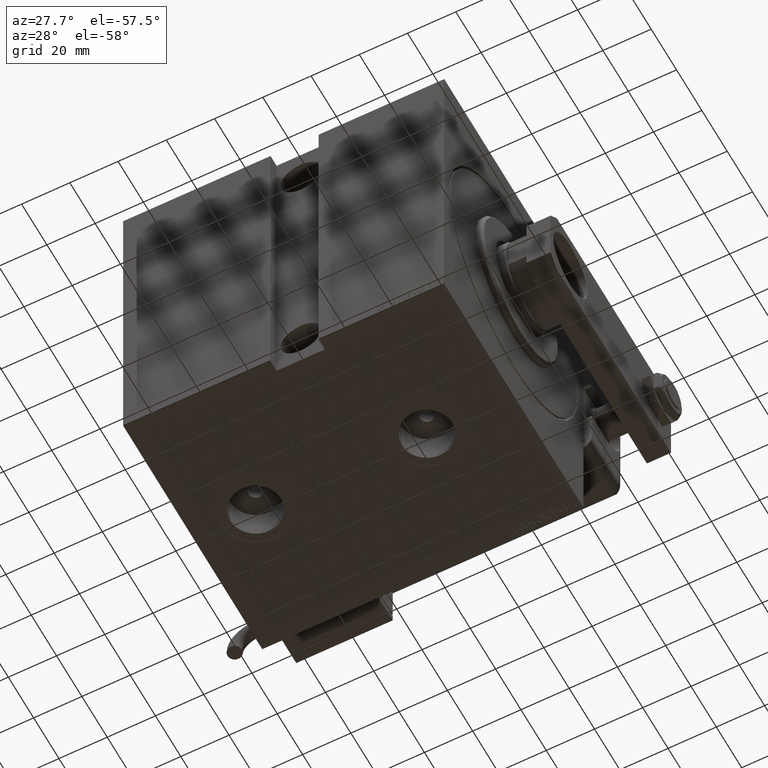
[diagram: clean part render]
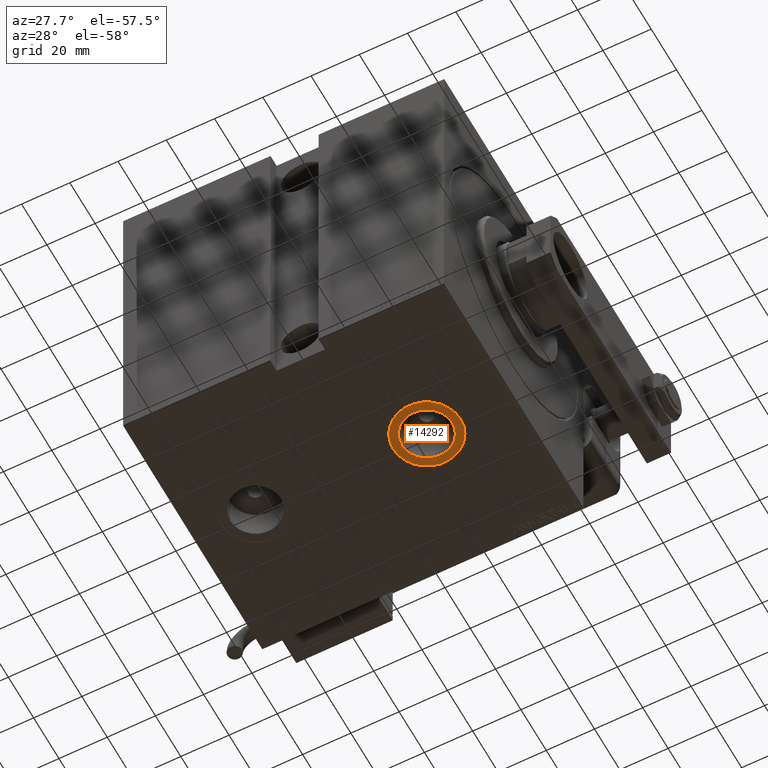
[diagram: same view with one face highlighted and labeled with its STEP entity id]
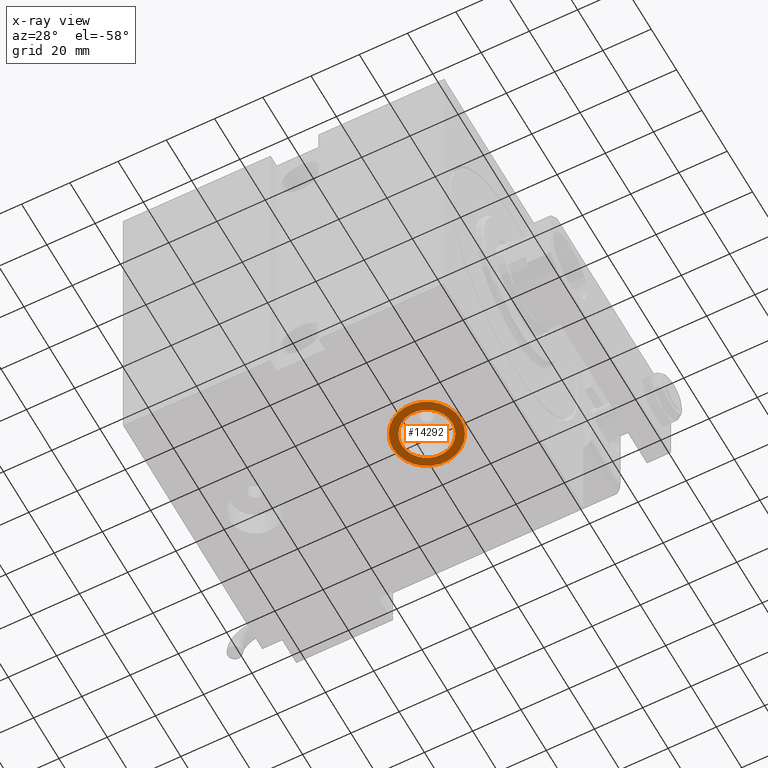
[diagram: x-ray of the same camera — body ghosted, the highlighted face saturated]
A machine part, auxiliary view. The second image highlights one B-rep face of the part: STEP entity #14292.
The next image is the same camera in x-ray: the body ghosted, the highlighted face saturated — about 0% of this face is hidden behind the body in this view.
In plain terms, the highlighted planar face has unit normal (-0, 0, -1).
Its self-contained STEP definition (entity closure, byte-faithful):
#1934 = ORIENTED_EDGE ( 'NONE', *, *, #9529, .T. ) ;
#2577 = CIRCLE ( 'NONE', #30026, 13.99999999999999822 ) ;
#2696 = DIRECTION ( 'NONE',  ( -1.000000000000000000, 0.000000000000000000, 0.000000000000000000 ) ) ;
#5641 = CARTESIAN_POINT ( 'NONE',  ( 36.00000000000000000, -9.665880115316144659E-15, -69.90000000000001990 ) ) ;
#6926 = CIRCLE ( 'NONE', #54206, 13.99999999999999822 ) ;
#8303 = DIRECTION ( 'NONE',  ( 0.000000000000000000, 0.000000000000000000, -1.000000000000000000 ) ) ;
#8816 = DIRECTION ( 'NONE',  ( -1.000000000000000000, 0.000000000000000000, 0.000000000000000000 ) ) ;
#9529 = EDGE_CURVE ( 'NONE', #49869, #24985, #6926, .T. ) ;
#12168 = CARTESIAN_POINT ( 'NONE',  ( 36.00000000000000000, -9.665880115316144659E-15, -69.90000000000001990 ) ) ;
#12454 = VERTEX_POINT ( 'NONE', #44870 ) ;
#13386 = CARTESIAN_POINT ( 'NONE',  ( 36.00000000000000000, -9.665880115316144659E-15, -69.90000000000001990 ) ) ;
#13979 = AXIS2_PLACEMENT_3D ( 'NONE', #23318, #49395, #8816 ) ;
#14161 = ORIENTED_EDGE ( 'NONE', *, *, #21221, .T. ) ;
#14292 = ADVANCED_FACE ( 'NONE', ( #15285, #41380 ), #42550, .T. ) ;
#15285 = FACE_BOUND ( 'NONE', #17090, .T. ) ;
#17090 = EDGE_LOOP ( 'NONE', ( #43547, #34162 ) ) ;
#18407 = DIRECTION ( 'NONE',  ( 0.000000000000000000, 0.000000000000000000, -1.000000000000000000 ) ) ;
#19977 = EDGE_LOOP ( 'NONE', ( #1934, #14161 ) ) ;
#21221 = EDGE_CURVE ( 'NONE', #24985, #49869, #2577, .T. ) ;
#23318 = CARTESIAN_POINT ( 'NONE',  ( 36.00000000000000000, -9.665880115316144659E-15, -69.90000000000001990 ) ) ;
#24145 = CARTESIAN_POINT ( 'NONE',  ( 25.51999999999999602, -9.665880115316144659E-15, -69.90000000000001990 ) ) ;
#24985 = VERTEX_POINT ( 'NONE', #25849 ) ;
#25849 = CARTESIAN_POINT ( 'NONE',  ( 50.00000000000000000, -7.951374596509851007E-15, -69.90000000000001990 ) ) ;
#26706 = DIRECTION ( 'NONE',  ( -1.000000000000000000, 0.000000000000000000, 0.000000000000000000 ) ) ;
#29124 = EDGE_CURVE ( 'NONE', #12454, #33651, #36656, .T. ) ;
#29204 = DIRECTION ( 'NONE',  ( 0.000000000000000000, 0.000000000000000000, -1.000000000000000000 ) ) ;
#29691 = CARTESIAN_POINT ( 'NONE',  ( 22.00000000000000000, -9.665880115316144659E-15, -69.90000000000001990 ) ) ;
#30026 = AXIS2_PLACEMENT_3D ( 'NONE', #5641, #37635, #42653 ) ;
#30371 = EDGE_CURVE ( 'NONE', #33651, #12454, #49925, .T. ) ;
#33535 = AXIS2_PLACEMENT_3D ( 'NONE', #55307, #29204, #33655 ) ;
#33651 = VERTEX_POINT ( 'NONE', #24145 ) ;
#33655 = DIRECTION ( 'NONE',  ( -1.000000000000000000, 0.000000000000000000, -0.000000000000000000 ) ) ;
#34162 = ORIENTED_EDGE ( 'NONE', *, *, #29124, .F. ) ;
#34750 = AXIS2_PLACEMENT_3D ( 'NONE', #12168, #8303, #2696 ) ;
#36656 = CIRCLE ( 'NONE', #34750, 10.48000000000000043 ) ;
#37635 = DIRECTION ( 'NONE',  ( 0.000000000000000000, 0.000000000000000000, -1.000000000000000000 ) ) ;
#41380 = FACE_OUTER_BOUND ( 'NONE', #19977, .T. ) ;
#42550 = PLANE ( 'NONE',  #33535 ) ;
#42653 = DIRECTION ( 'NONE',  ( -1.000000000000000000, 0.000000000000000000, 0.000000000000000000 ) ) ;
#43547 = ORIENTED_EDGE ( 'NONE', *, *, #30371, .F. ) ;
#44870 = CARTESIAN_POINT ( 'NONE',  ( 46.47999999999999687, -8.382450269809717592E-15, -69.90000000000001990 ) ) ;
#49395 = DIRECTION ( 'NONE',  ( 0.000000000000000000, 0.000000000000000000, -1.000000000000000000 ) ) ;
#49869 = VERTEX_POINT ( 'NONE', #29691 ) ;
#49925 = CIRCLE ( 'NONE', #13979, 10.48000000000000043 ) ;
#54206 = AXIS2_PLACEMENT_3D ( 'NONE', #13386, #18407, #26706 ) ;
#55307 = CARTESIAN_POINT ( 'NONE',  ( 0.000000000000000000, 0.000000000000000000, -69.90000000000001990 ) ) ;